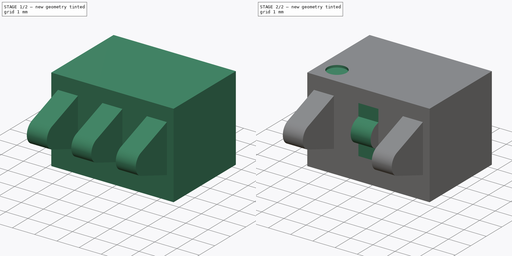
[diagram: build sequence overview — one tinted view per stage of 2, left to right]
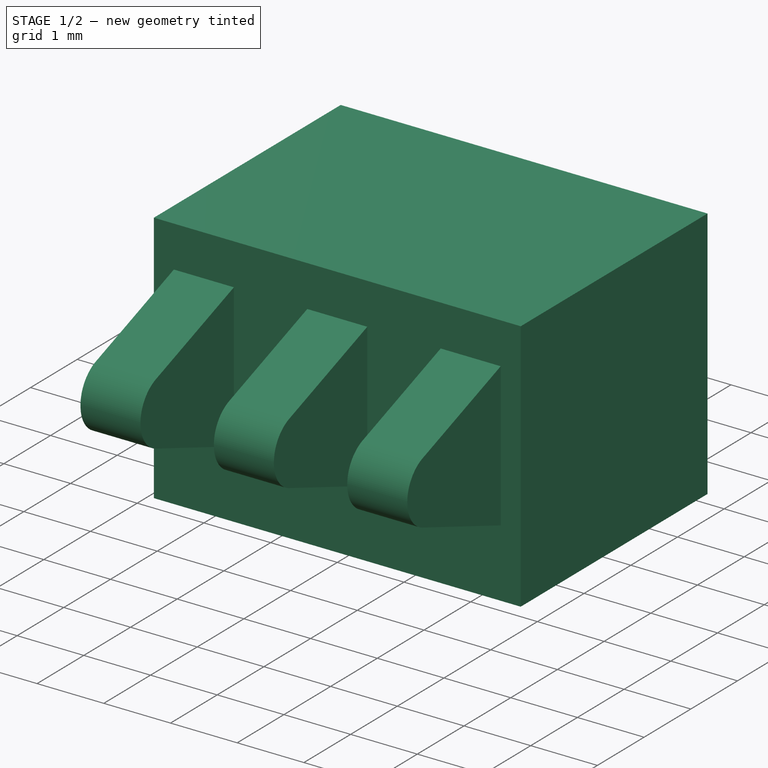
[diagram: stage 1 of 2 — iso view after this stage's code; geometry added in this stage tinted green]
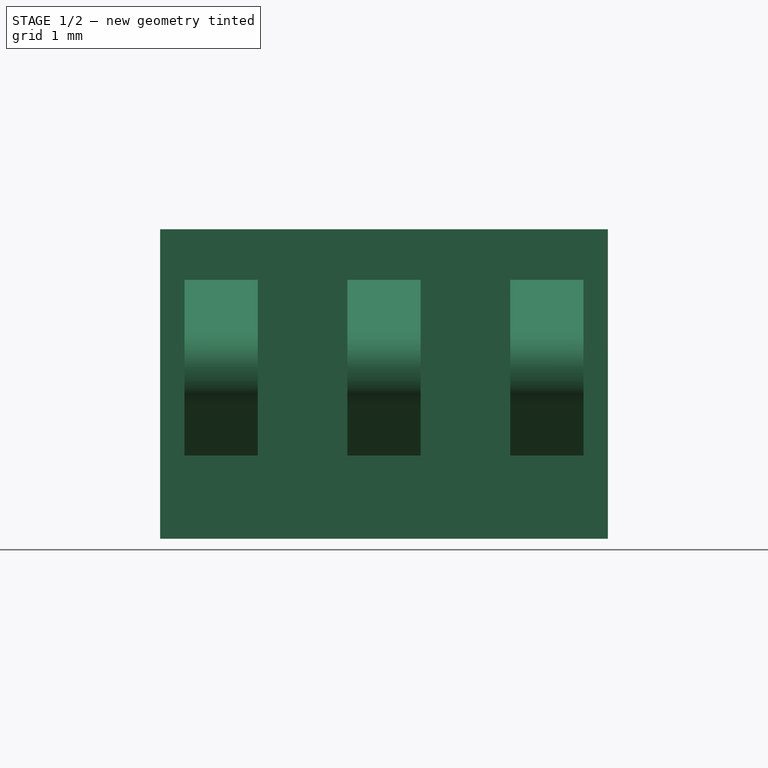
[diagram: stage 1 of 2 — front view after this stage's code; geometry added in this stage tinted green]
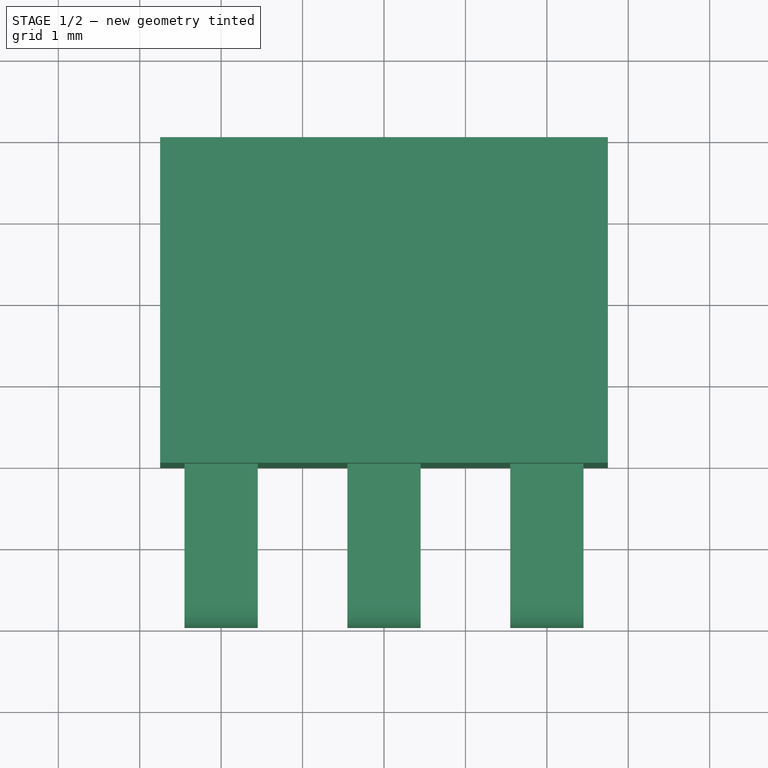
[diagram: stage 1 of 2 — top view after this stage's code; geometry added in this stage tinted green]
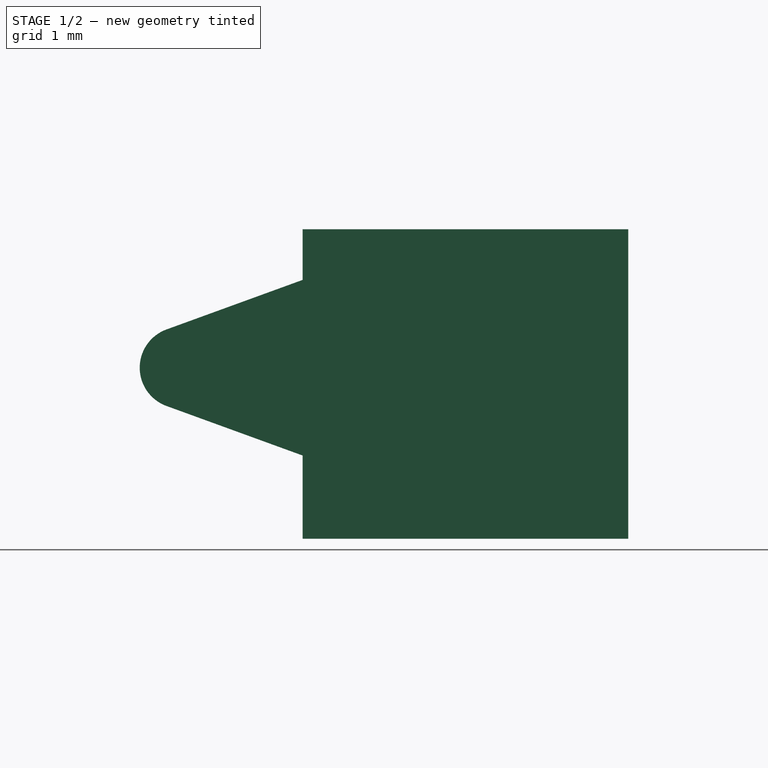
[diagram: stage 1 of 2 — right view after this stage's code; geometry added in this stage tinted green]
FCSTD DOCUMENT  (FreeCAD 0.21R33668 +7 (Git))
Label: Kyocera 009155003741006
License: All rights reserved
LicenseURL: https://en.wikipedia.org/wiki/All_rights_reserved
objects: Sketcher::SketchObject×4, PartDesign::Pocket×3, PartDesign::Pad×1, PartDesign::Body×1
note: 13 computed .brp shape members not serialized (recipe doc carries the construction recipe); baked Part::Feature solids carry a one-line shape summary decoded from their .brp

FEATURE [Sketcher::SketchObject] Sketch
  FullyConstrained = true
  MapMode = 5
  Placement = pos=(0,0,0) rot=(0.57735,0.57735,0.57735;2.0944rad)
  Support = -> [YZ_Plane]
  sketch-geometry (10):
    g0: LineSegment StartX=-2 StartY=3.8 StartZ=0 EndX=2 EndY=3.8 EndZ=0
    g1: LineSegment StartX=2 StartY=3.8 StartZ=0 EndX=2 EndY=0 EndZ=0
    g2: LineSegment StartX=2 StartY=0 StartZ=0 EndX=-2 EndY=0 EndZ=0
    g3: LineSegment StartX=-2 StartY=0 StartZ=0 EndX=-2 EndY=3.8 EndZ=0
    g4: ArcOfCircle CenterX=-3.5 CenterY=2.1 CenterZ=0 NormalX=0 NormalY=0 NormalZ=1 AngleXU=0 Radius=0.5 StartAngle=1.91986 EndAngle=4.36332
    g5: LineSegment StartX=-3.67101 StartY=2.56985 StartZ=0 EndX=-2 EndY=3.17804 EndZ=0
    g6: LineSegment StartX=-3.67101 StartY=1.63015 StartZ=0 EndX=-2 EndY=1.02196 EndZ=0
    g7: LineSegment StartX=-2 StartY=3.8 StartZ=0 EndX=-2 EndY=3.17804 EndZ=0
    g8: LineSegment StartX=-2 StartY=1.02196 StartZ=0 EndX=-2 EndY=0 EndZ=0
    g9: LineSegment StartX=-4 StartY=2.1 StartZ=0 EndX=-2 EndY=2.1 EndZ=0
  constraints (28):
    c: Coincident(g0,g1)
    c: Coincident(g1,g2)
    c: Coincident(g2,g3)
    c: Coincident(g3,g0)
    c: Horizontal(g0)
    c: Vertical(g1)
    c: Vertical(g3)
    c: PointOnObject(g1,g-1)
    c: DistanceX(g0,g0) = 4
    c: DistanceY(g1,g1) = 3.8
    c: Symmetric(g2,g1,g-2)
    c: PointOnObject(g5,g3)
    c: PointOnObject(g6,g3)
    c: Tangent(g6,g4) = -1.5708
    c: Tangent(g5,g4) = 1.5708
    c: Coincident(g7,g0)
    c: Coincident(g7,g5)
    c: Coincident(g8,g6)
    c: Coincident(g8,g2)
    c: Equal(g6,g5)
    c: DistanceY(g2,g4) = 2.1
    c: Diameter(g4) = 1
    c: PointOnObject(g9,g4)
    c: PointOnObject(g9,g3)
    c: PointOnObject(g4,g9)
    c: Horizontal(g9)
    c: DistanceX(g9,g9) = 2
    c: Angle(g7,g5) = 1.91986
FEATURE [PartDesign::Pad] Pad
  Direction = (1,-2e-16,3e-16)
  Length = 5.5
  Length2 = 10
  Midplane = true
  Placement = pos=(0,0,0) rot=(1,1,1;2.0944rad)
  Profile = -> Sketch
  ReferenceAxis = -> Sketch [N_Axis]
  Type = 0
FEATURE [Sketcher::SketchObject] Sketch001
  FullyConstrained = true
  MapMode = 5
  Support = -> [XY_Plane]
  sketch-geometry (19):
    g0: LineSegment StartX=-2.45 StartY=-7 StartZ=0 EndX=-3.55 EndY=-7 EndZ=0
    g1: LineSegment StartX=-3.55 StartY=-7 StartZ=0 EndX=-3.55 EndY=-2 EndZ=0
    g2: LineSegment StartX=-3.55 StartY=-2 StartZ=0 EndX=-2.45 EndY=-2 EndZ=0
    g3: LineSegment StartX=-2.45 StartY=-2 StartZ=0 EndX=-2.45 EndY=-7 EndZ=0
    g4: LineSegment StartX=3.55 StartY=-7 StartZ=0 EndX=2.45 EndY=-7 EndZ=0
    g5: LineSegment StartX=2.45 StartY=-7 StartZ=0 EndX=2.45 EndY=-2 EndZ=0
    g6: LineSegment StartX=2.45 StartY=-2 StartZ=0 EndX=3.55 EndY=-2 EndZ=0
    g7: LineSegment StartX=3.55 StartY=-2 StartZ=0 EndX=3.55 EndY=-7 EndZ=0
    g8: LineSegment StartX=-1.55 StartY=-7 StartZ=0 EndX=-0.45 EndY=-7 EndZ=0
    g9: LineSegment StartX=-0.45 StartY=-7 StartZ=0 EndX=-0.45 EndY=-2 EndZ=0
    g10: LineSegment StartX=-0.45 StartY=-2 StartZ=0 EndX=-1.55 EndY=-2 EndZ=0
    g11: LineSegment StartX=-1.55 StartY=-2 StartZ=0 EndX=-1.55 EndY=-7 EndZ=0
    g12: LineSegment StartX=0.45 StartY=-7 StartZ=0 EndX=1.55 EndY=-7 EndZ=0
    g13: LineSegment StartX=1.55 StartY=-7 StartZ=0 EndX=1.55 EndY=-2 EndZ=0
    g14: LineSegment StartX=1.55 StartY=-2 StartZ=0 EndX=0.45 EndY=-2 EndZ=0
    g15: LineSegment StartX=0.45 StartY=-2 StartZ=0 EndX=0.45 EndY=-7 EndZ=0
    g16: LineSegment StartX=-2.45 StartY=-7 StartZ=0 EndX=-1.55 EndY=-7 EndZ=0
    g17: LineSegment StartX=-0.45 StartY=-7 StartZ=0 EndX=0.45 EndY=-7 EndZ=0
    g18: LineSegment StartX=1.55 StartY=-7 StartZ=0 EndX=2.45 EndY=-7 EndZ=0
  constraints (53):
    c: Coincident(g0,g1)
    c: Coincident(g1,g2)
    c: Coincident(g2,g3)
    c: Coincident(g3,g0)
    c: Horizontal(g0)
    c: Horizontal(g2)
    c: Vertical(g1)
    c: Vertical(g3)
    c: Coincident(g4,g5)
    c: Coincident(g5,g6)
    c: Coincident(g6,g7)
    c: Coincident(g7,g4)
    c: Horizontal(g4)
    c: Horizontal(g6)
    c: Vertical(g5)
    c: Vertical(g7)
    c: Coincident(g8,g9)
    c: Coincident(g9,g10)
    c: Coincident(g10,g11)
    c: Coincident(g11,g8)
    c: Horizontal(g8)
    c: Horizontal(g10)
    c: Vertical(g9)
    c: Vertical(g11)
    c: Coincident(g12,g13)
    c: Coincident(g13,g14)
    c: Coincident(g14,g15)
    c: Coincident(g15,g12)
    c: Horizontal(g12)
    c: Horizontal(g14)
    c: Vertical(g13)
    c: Vertical(g15)
    c: PointOnObject(g8,g0)
    c: PointOnObject(g4,g0)
    c: PointOnObject(g10,g2)
    c: PointOnObject(g14,g2)
    c: PointOnObject(g5,g2)
    c: Coincident(g16,g0)
    c: Coincident(g16,g8)
    c: Coincident(g17,g8)
    c: Coincident(g17,g12)
    c: Coincident(g18,g12)
    c: Coincident(g18,g4)
    c: Equal(g16,g17)
    c: Equal(g17,g18)
    c: Equal(g0,g8)
    c: Equal(g8,g12)
    c: Equal(g12,g4)
    c: Symmetric(g8,g12,g-2)
    c: DistanceY(g6,g-1) = 2
    c: DistanceX(g16,g16) = 0.9
    c: DistanceX(g8,g8) = 1.1
    c: DistanceY(g7,g7) = 5
FEATURE [PartDesign::Pocket] Pocket
  BaseFeature = -> Pad
  Direction = (0,0,-1)
  Length = 5
  Length2 = 5
  Placement = pos=(0,0,0) rot=(1,1,1;2.0944rad)
  Profile = -> Sketch001
  ReferenceAxis = -> Sketch001 [N_Axis]
  Reversed = true
  Type = 0
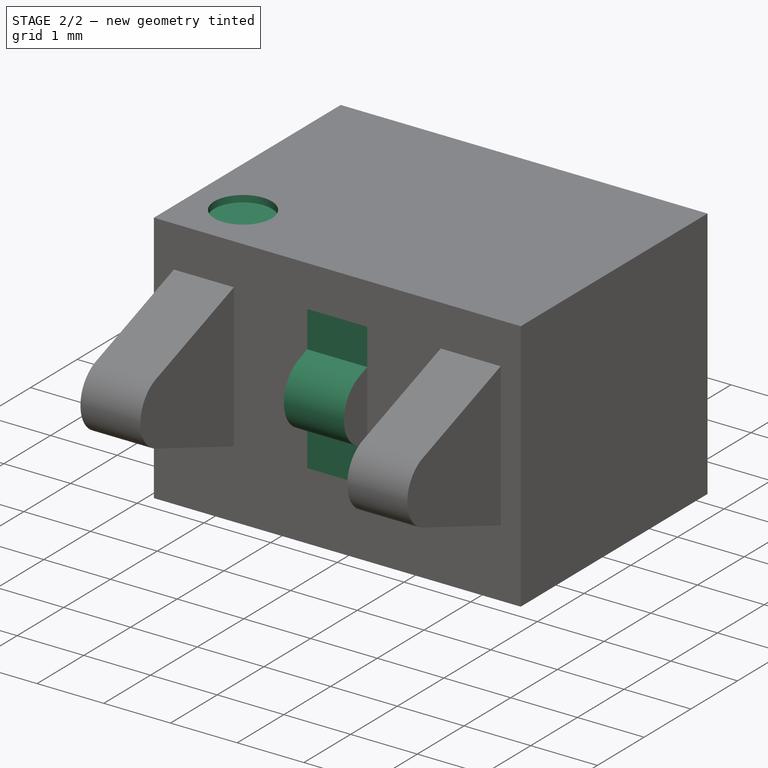
[diagram: stage 2 of 2 — iso view after this stage's code; geometry added in this stage tinted green]
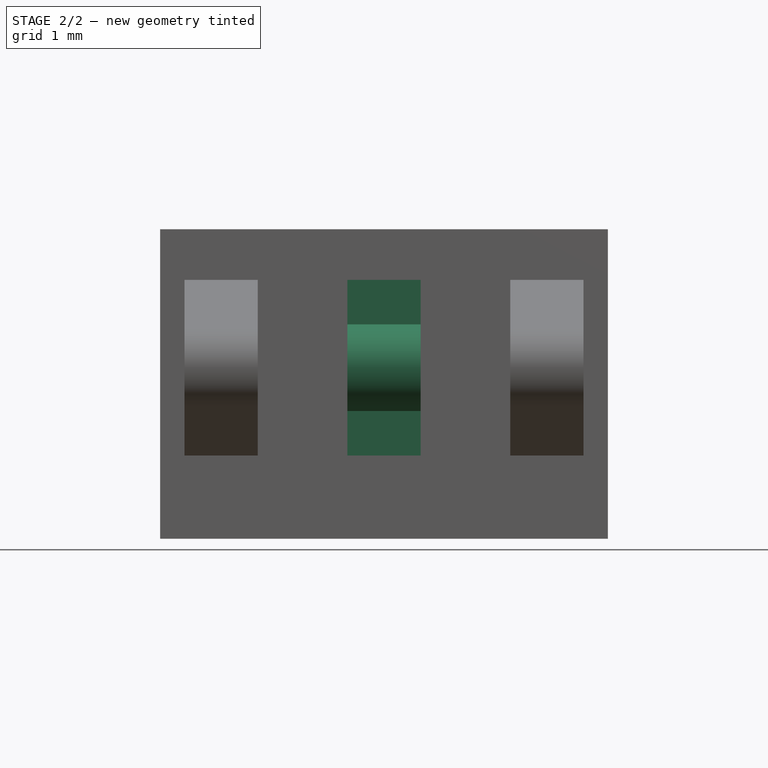
[diagram: stage 2 of 2 — front view after this stage's code; geometry added in this stage tinted green]
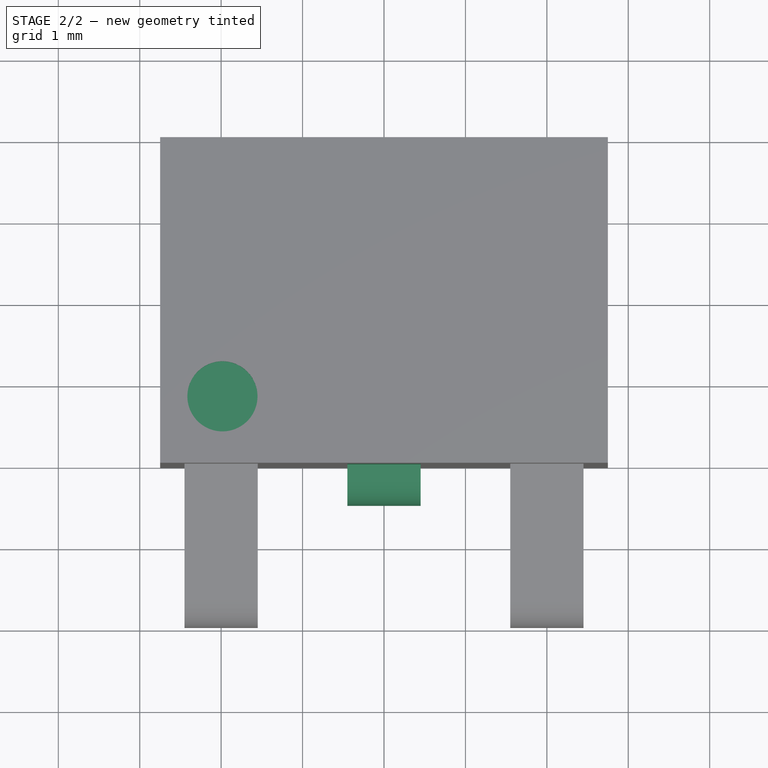
[diagram: stage 2 of 2 — top view after this stage's code; geometry added in this stage tinted green]
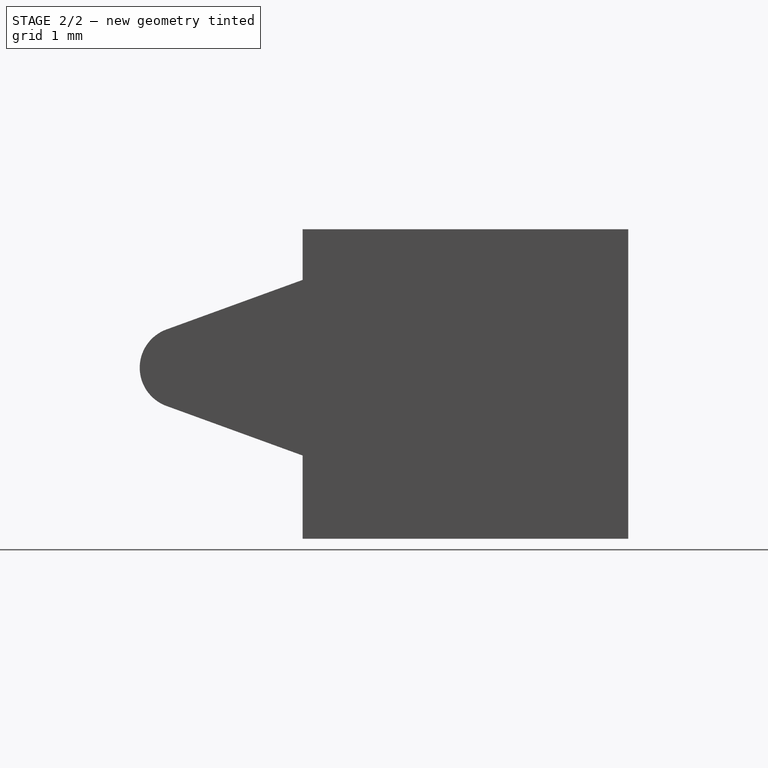
[diagram: stage 2 of 2 — right view after this stage's code; geometry added in this stage tinted green]
FEATURE [Sketcher::SketchObject] Sketch002
  FullyConstrained = false
  MapMode = 5
  Placement = pos=(0,0,0) rot=(0.57735,0.57735,0.57735;2.0944rad)
  Support = -> [YZ_Plane]
  sketch-geometry (9):
    g0: LineSegment StartX=-2 StartY=3.80384 StartZ=0 EndX=-2 EndY=2.63209 EndZ=0
    g1: LineSegment StartX=-2.17101 StartY=2.56985 StartZ=0 EndX=-2 EndY=2.63209 EndZ=0
    g2: LineSegment StartX=-2.17101 StartY=1.63015 StartZ=0 EndX=-2 EndY=1.56791 EndZ=0
    g3: LineSegment StartX=-2 StartY=1.56791 StartZ=0 EndX=-2 EndY=0 EndZ=0
    g4: LineSegment StartX=-2 StartY=0 StartZ=0 EndX=-4.6005 EndY=0 EndZ=0
    g5: LineSegment StartX=-4.6005 StartY=0 StartZ=0 EndX=-4.6005 EndY=3.80384 EndZ=0
    g6: LineSegment StartX=-4.6005 StartY=3.80384 StartZ=0 EndX=-2 EndY=3.80384 EndZ=0
    g7: ArcOfCircle CenterX=-2 CenterY=2.1 CenterZ=0 NormalX=0 NormalY=0 NormalZ=1 AngleXU=0 Radius=0.5 StartAngle=1.91986 EndAngle=4.36332
    g8: LineSegment StartX=-2.5 StartY=2.1 StartZ=0 EndX=-2 EndY=2.1 EndZ=0
  constraints (25):
    c: Vertical(g0)
    c: Coincident(g1,g0)
    c: Coincident(g3,g2)
    c: Vertical(g3)
    c: Coincident(g4,g3)
    c: Horizontal(g4)
    c: Coincident(g5,g4)
    c: Vertical(g5)
    c: Coincident(g6,g5)
    c: Coincident(g6,g0)
    c: Horizontal(g6)
    c: Tangent(g7,g1) = 1.5708
    c: Tangent(g7,g2) = -1.5708
    c: Diameter(g7) = 1
    c: Angle(g0,g1) = 1.91986
    c: PointOnObject(g2,g0)
    c: DistanceX(g0,g-1) = 2
    c: PointOnObject(g3,g-1)
    c: Equal(g2,g1)
    c: PointOnObject(g8,g7)
    c: Horizontal(g8)
    c: PointOnObject(g8,g3)
    c: PointOnObject(g7,g8)
    c: DistanceY(g3,g8) = 2.1
    c: DistanceX(g8,g8) = 0.5
FEATURE [PartDesign::Pocket] Pocket001
  BaseFeature = -> Pocket
  Direction = (-1,2e-16,-3e-16)
  Length = 2
  Length2 = 5
  Midplane = true
  Placement = pos=(0,0,0) rot=(1,1,1;2.0944rad)
  Profile = -> Sketch002
  ReferenceAxis = -> Sketch002 [N_Axis]
  Type = 0
FEATURE [Sketcher::SketchObject] Sketch003
  FullyConstrained = false
  MapMode = 5
  Placement = pos=(-4e-15,3e-15,3.8) rot=(0,0,-1;1.5708rad)
  Support = -> [Pocket001]
  sketch-geometry (1):
    g0: Circle CenterX=1.18446 CenterY=-1.98417 CenterZ=0 NormalX=0 NormalY=0 NormalZ=1 AngleXU=0 Radius=0.430574
FEATURE [PartDesign::Pocket] Pocket002
  BaseFeature = -> Pocket001
  Direction = (1.1e-15,-8e-16,-1)
  Length = 0.1
  Length2 = 5
  Placement = pos=(0,0,0) rot=(1,1,1;2.0944rad)
  Profile = -> Sketch003
  ReferenceAxis = -> Sketch003 [N_Axis]
  Type = 0
FEATURE [PartDesign::Body] Body
  Group = -> [Sketch,Pad,Sketch001,Pocket,Sketch002,Pocket001,Sketch003,Pocket002]
  Origin = -> Origin
  Tip = -> Pocket002
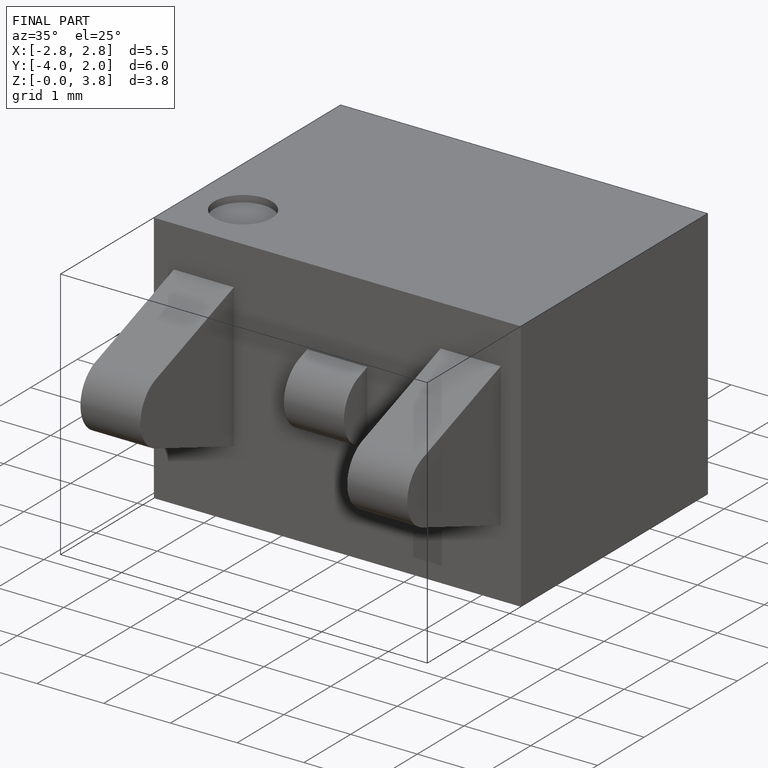
[diagram: finished part — iso view with bounding-box wireframe]
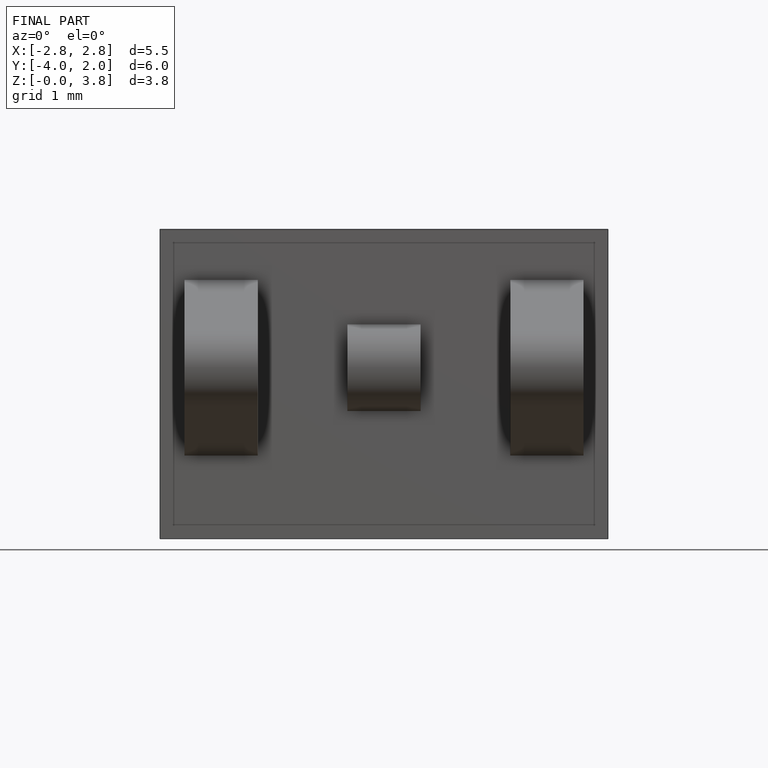
[diagram: finished part — front view with bounding-box wireframe]
